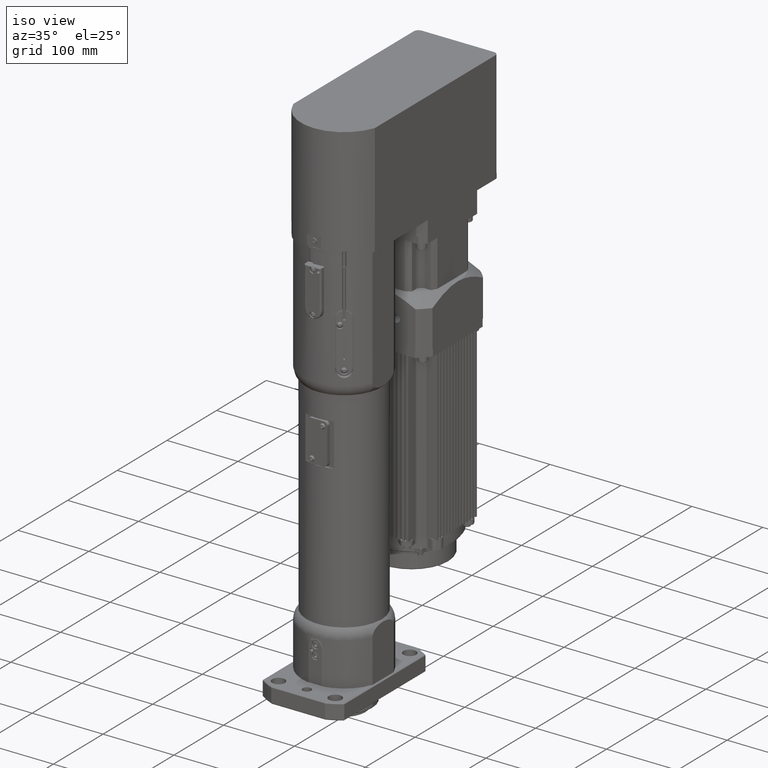
[diagram: clean part render]
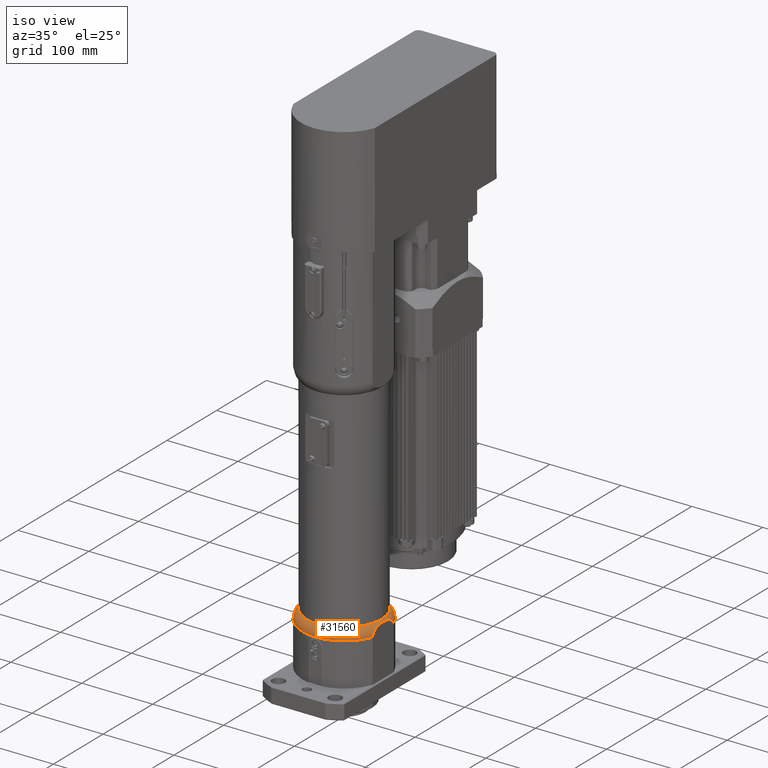
[diagram: same view with one face highlighted and labeled with its STEP entity id]
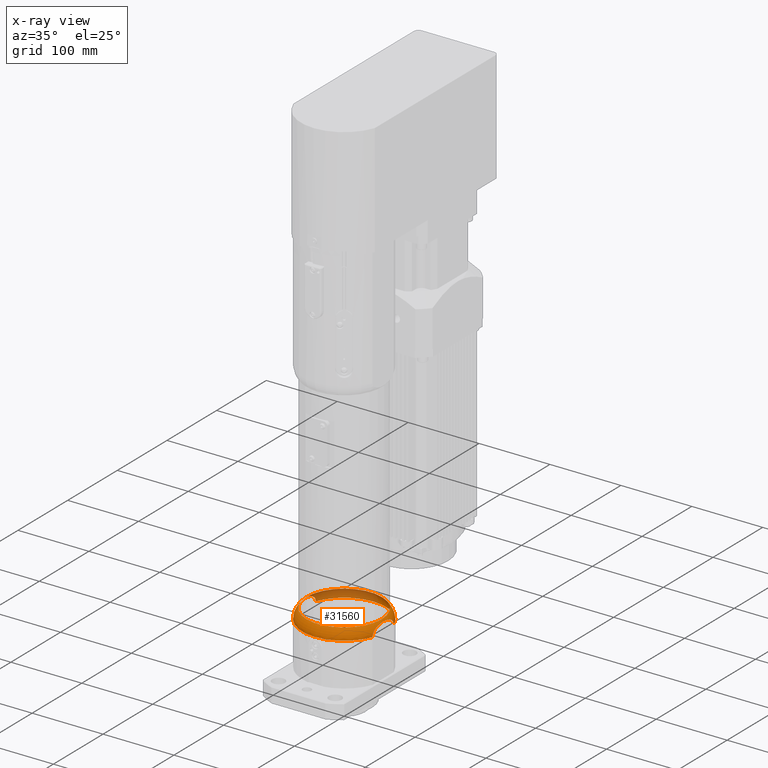
[diagram: x-ray of the same camera — body ghosted, the highlighted face saturated]
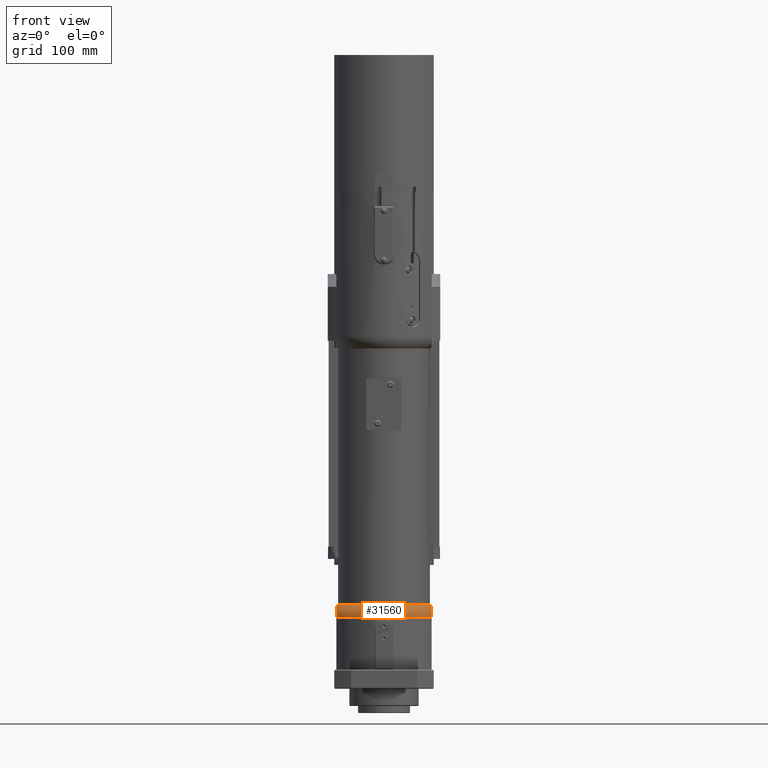
[diagram: same view with one face highlighted and labeled with its STEP entity id]
A machine part, iso view. The second image highlights one B-rep face of the part: STEP entity #31560.
The next image is the same camera in x-ray: the body ghosted, the highlighted face saturated — about 29% of this face is hidden behind the body in this view.
A second angle (front view) of the same face is appended — the face is thin or edge-on in the first view.
In plain terms, the highlighted toroidal blend (fillet) surface has major radius 39 mm and minor (blend) radius 20 mm.
Its self-contained STEP definition (entity closure, byte-faithful):
#243=TOROIDAL_SURFACE('',#34134,39.0000000000003,20.);
#8821=FACE_OUTER_BOUND('',#10650,.T.);
#10650=EDGE_LOOP('',(#24786,#24787,#24788,#24789,#24790,#24791,#24792,#24793,
#24794));
#12631=CIRCLE('',#34135,59.0000000000003);
#12632=CIRCLE('',#34136,20.);
#12633=CIRCLE('',#34137,53.);
#12634=CIRCLE('',#34138,53.);
#12635=CIRCLE('',#34139,59.0000000000003);
#13632=B_SPLINE_CURVE_WITH_KNOTS('',3,(#50104,#50105,#50106,#50107,#50108,
#50109,#50110,#50111,#50112,#50113,#50114,#50115,#50116,#50117,#50118,#50119,
#50120,#50121,#50122,#50123,#50124,#50125,#50126,#50127,#50128,#50129,#50130,
#50131,#50132,#50133,#50134,#50135,#50136,#50137,#50138),.UNSPECIFIED.,
 .F.,.F.,(4,2,2,2,2,2,2,2,3,2,2,2,2,2,2,2,4),(-2.53659667653241,-2.4085389954998,
-2.28048131446718,-2.12513834180732,-1.96979536914745,-1.73820945368033,
-1.50662353821322,-0.75331176910661,0.,0.753311769106609,1.50662353821322,
1.73820945368033,1.96979536914745,2.12513834180732,2.28048131446718,2.4085389954998,
2.53659667653241),.UNSPECIFIED.);
#13633=B_SPLINE_CURVE_WITH_KNOTS('',3,(#50142,#50143,#50144,#50145,#50146,
#50147,#50148,#50149,#50150,#50151,#50152,#50153,#50154,#50155,#50156,#50157,
#50158,#50159),.UNSPECIFIED.,.F.,.F.,(4,2,2,2,2,2,2,2,4),(-2.53659667653189,
-2.40853899549931,-2.28048131446672,-2.12513834180689,-1.96979536914705,
-1.73820945367998,-1.50662353821291,-0.753311769106457,0.),
 .UNSPECIFIED.);
#13634=B_SPLINE_CURVE_WITH_KNOTS('',3,(#50166,#50167,#50168,#50169,#50170,
#50171,#50172,#50173,#50174,#50175,#50176,#50177,#50178,#50179,#50180,#50181,
#50182,#50183),.UNSPECIFIED.,.F.,.F.,(4,2,2,2,2,2,2,2,4),(0.,0.753311769106457,
1.50662353821291,1.73820945367998,1.96979536914705,2.12513834180689,2.28048131446672,
2.40853899549931,2.53659667653189),.UNSPECIFIED.);
#15028=VERTEX_POINT('',#50102);
#15029=VERTEX_POINT('',#50103);
#15030=VERTEX_POINT('',#50139);
#15031=VERTEX_POINT('',#50141);
#15032=VERTEX_POINT('',#50160);
#15033=VERTEX_POINT('',#50162);
#15034=VERTEX_POINT('',#50165);
#18631=EDGE_CURVE('',#15028,#15029,#13632,.T.);
#18632=EDGE_CURVE('',#15029,#15030,#12631,.T.);
#18633=EDGE_CURVE('',#15030,#15031,#13633,.T.);
#18634=EDGE_CURVE('',#15031,#15032,#12632,.T.);
#18635=EDGE_CURVE('',#15032,#15033,#12633,.T.);
#18636=EDGE_CURVE('',#15033,#15032,#12634,.T.);
#18637=EDGE_CURVE('',#15031,#15034,#13634,.T.);
#18638=EDGE_CURVE('',#15034,#15028,#12635,.T.);
#24786=ORIENTED_EDGE('',*,*,#18631,.T.);
#24787=ORIENTED_EDGE('',*,*,#18632,.T.);
#24788=ORIENTED_EDGE('',*,*,#18633,.T.);
#24789=ORIENTED_EDGE('',*,*,#18634,.T.);
#24790=ORIENTED_EDGE('',*,*,#18635,.T.);
#24791=ORIENTED_EDGE('',*,*,#18636,.T.);
#24792=ORIENTED_EDGE('',*,*,#18634,.F.);
#24793=ORIENTED_EDGE('',*,*,#18637,.T.);
#24794=ORIENTED_EDGE('',*,*,#18638,.T.);
#31560=ADVANCED_FACE('',(#8821),#243,.T.);
#34134=AXIS2_PLACEMENT_3D('',#50101,#39809,#39810);
#34135=AXIS2_PLACEMENT_3D('',#50140,#39811,#39812);
#34136=AXIS2_PLACEMENT_3D('',#50161,#39813,#39814);
#34137=AXIS2_PLACEMENT_3D('',#50163,#39815,#39816);
#34138=AXIS2_PLACEMENT_3D('',#50164,#39817,#39818);
#34139=AXIS2_PLACEMENT_3D('',#50184,#39819,#39820);
#39809=DIRECTION('center_axis',(8.18928724299131E-16,-5.62947358965912E-15,
-1.));
#39810=DIRECTION('ref_axis',(-1.,2.12676588861223E-12,-7.22585832976369E-16));
#39811=DIRECTION('center_axis',(-8.18928724299131E-16,5.62947358965912E-15,
1.));
#39812=DIRECTION('ref_axis',(-1.,2.12676588861223E-12,-8.18928724311103E-16));
#39813=DIRECTION('center_axis',(-2.12664342393231E-12,-1.,5.62947358965737E-15));
#39814=DIRECTION('ref_axis',(1.,-2.12664342393231E-12,9.03232291220462E-16));
#39815=DIRECTION('center_axis',(8.18928724299131E-16,-5.62947358965912E-15,
-1.));
#39816=DIRECTION('ref_axis',(1.,-2.05872930986111E-12,8.1892872431072E-16));
#39817=DIRECTION('center_axis',(8.18928724299131E-16,-5.62947358965912E-15,
-1.));
#39818=DIRECTION('ref_axis',(1.,-2.05872930986111E-12,8.1892872431072E-16));
#39819=DIRECTION('center_axis',(-8.18928724299131E-16,5.62947358965912E-15,
1.));
#39820=DIRECTION('ref_axis',(-1.,2.12676588861223E-12,-8.18928724311103E-16));
#50101=CARTESIAN_POINT('Origin',(1.10514485341356E-10,-1.09415524526279E-11,
82.7171431429139));
#50102=CARTESIAN_POINT('',(-54.9999999998439,21.3541565041649,82.7171431429137));
#50103=CARTESIAN_POINT('',(-54.9999999999323,-21.3541565039661,82.7171431429139));
#50104=CARTESIAN_POINT('Ctrl Pts',(-54.9999999998439,21.35415650417,82.7171431429137));
#50105=CARTESIAN_POINT('Ctrl Pts',(-54.9999999998439,21.35415650417,83.1440020796891));
#50106=CARTESIAN_POINT('Ctrl Pts',(-54.999999999844,21.3136999111205,83.6104254402739));
#50107=CARTESIAN_POINT('Ctrl Pts',(-54.9999999998443,21.1414096503454,84.5264885350108));
#50108=CARTESIAN_POINT('Ctrl Pts',(-54.9999999998446,21.0098575219722,84.9761811978009));
#50109=CARTESIAN_POINT('Ctrl Pts',(-54.9999999998453,20.6757006624195,85.8597752341885));
#50110=CARTESIAN_POINT('Ctrl Pts',(-54.9999999998458,20.4261579010344,86.36950767458));
#50111=CARTESIAN_POINT('Ctrl Pts',(-54.999999999847,19.833803119195,87.3331620817128));
#50112=CARTESIAN_POINT('Ctrl Pts',(-54.9999999998477,19.4917548976198,87.7875533443014));
#50113=CARTESIAN_POINT('Ctrl Pts',(-54.9999999998495,18.6489328375884,88.7638419641286));
#50114=CARTESIAN_POINT('Ctrl Pts',(-54.9999999998508,18.0350696033766,89.3453058725042));
#50115=CARTESIAN_POINT('Ctrl Pts',(-54.9999999998535,16.7094116709838,90.388402981088));
#50116=CARTESIAN_POINT('Ctrl Pts',(-54.9999999998549,15.9986958767723,90.8514066165721));
#50117=CARTESIAN_POINT('Ctrl Pts',(-54.9999999998609,13.1470194859994,92.4780535006268));
#50118=CARTESIAN_POINT('Ctrl Pts',(-54.9999999998662,10.5733002698936,93.3621586314787));
#50119=CARTESIAN_POINT('Ctrl Pts',(-54.9999999998772,5.25537698821029,94.4820209336154));
#50120=CARTESIAN_POINT('Ctrl Pts',(-54.9999999998829,2.51103923045832,94.7171431429161));
#50121=CARTESIAN_POINT('Ctrl Pts',(-54.9999999998881,1.02950889816628E-10,
94.7171431429161));
#50122=CARTESIAN_POINT('Ctrl Pts',(-54.9999999998933,-2.51103923025241,
94.7171431429161));
#50123=CARTESIAN_POINT('Ctrl Pts',(-54.999999999899,-5.25537698800438,94.4820209336155));
#50124=CARTESIAN_POINT('Ctrl Pts',(-54.99999999991,-10.5733002696877,93.3621586314788));
#50125=CARTESIAN_POINT('Ctrl Pts',(-54.9999999999153,-13.1470194857935,
92.4780535006269));
#50126=CARTESIAN_POINT('Ctrl Pts',(-54.9999999999212,-15.9986958765664,
90.8514066165722));
#50127=CARTESIAN_POINT('Ctrl Pts',(-54.9999999999226,-16.709411670778,90.3884029810882));
#50128=CARTESIAN_POINT('Ctrl Pts',(-54.9999999999254,-18.0350696031707,
89.3453058725044));
#50129=CARTESIAN_POINT('Ctrl Pts',(-54.9999999999267,-18.6489328373825,
88.7638419641289));
#50130=CARTESIAN_POINT('Ctrl Pts',(-54.9999999999284,-19.4917548974139,
87.7875533443016));
#50131=CARTESIAN_POINT('Ctrl Pts',(-54.9999999999291,-19.8338031189892,
87.333162081713));
#50132=CARTESIAN_POINT('Ctrl Pts',(-54.9999999999303,-20.4261579008286,
86.3695076745802));
#50133=CARTESIAN_POINT('Ctrl Pts',(-54.9999999999308,-20.6757006622137,
85.8597752341888));
#50134=CARTESIAN_POINT('Ctrl Pts',(-54.9999999999315,-21.0098575217664,
84.9761811978012));
#50135=CARTESIAN_POINT('Ctrl Pts',(-54.9999999999318,-21.1414096501397,
84.526488535011));
#50136=CARTESIAN_POINT('Ctrl Pts',(-54.9999999999322,-21.3136999109147,
83.6104254402741));
#50137=CARTESIAN_POINT('Ctrl Pts',(-54.9999999999322,-21.3541565039643,
83.1440020796893));
#50138=CARTESIAN_POINT('Ctrl Pts',(-54.9999999999322,-21.3541565039643,
82.7171431429139));
#50139=CARTESIAN_POINT('',(55.0000000000669,-21.3541565041903,82.717143142914));
#50140=CARTESIAN_POINT('Origin',(1.10514485341356E-10,-1.09415524526279E-11,
82.7171431429139));
#50141=CARTESIAN_POINT('',(55.0000000001108,-1.25960066381993E-10,94.7171431429139));
#50142=CARTESIAN_POINT('Ctrl Pts',(55.0000000000669,-21.3541565041869,82.717143142914));
#50143=CARTESIAN_POINT('Ctrl Pts',(55.0000000000669,-21.3541565041869,83.1440020796893));
#50144=CARTESIAN_POINT('Ctrl Pts',(55.0000000000669,-21.3136999111373,83.610425440274));
#50145=CARTESIAN_POINT('Ctrl Pts',(55.0000000000673,-21.1414096503623,84.5264885350107));
#50146=CARTESIAN_POINT('Ctrl Pts',(55.0000000000676,-21.0098575219891,84.9761811978008));
#50147=CARTESIAN_POINT('Ctrl Pts',(55.0000000000683,-20.6757006624365,85.8597752341882));
#50148=CARTESIAN_POINT('Ctrl Pts',(55.0000000000688,-20.4261579010514,86.3695076745795));
#50149=CARTESIAN_POINT('Ctrl Pts',(55.00000000007,-19.8338031192122,87.3331620817121));
#50150=CARTESIAN_POINT('Ctrl Pts',(55.0000000000707,-19.491754897637,87.7875533443006));
#50151=CARTESIAN_POINT('Ctrl Pts',(55.0000000000724,-18.6489328376057,88.7638419641277));
#50152=CARTESIAN_POINT('Ctrl Pts',(55.0000000000737,-18.0350696033941,89.3453058725031));
#50153=CARTESIAN_POINT('Ctrl Pts',(55.0000000000764,-16.7094116710016,90.3884029810867));
#50154=CARTESIAN_POINT('Ctrl Pts',(55.0000000000779,-15.9986958767902,90.8514066165707));
#50155=CARTESIAN_POINT('Ctrl Pts',(55.0000000000838,-13.1470194860179,92.4780535006251));
#50156=CARTESIAN_POINT('Ctrl Pts',(55.000000000089,-10.5733002699126,93.3621586314768));
#50157=CARTESIAN_POINT('Ctrl Pts',(55.0000000001,-5.25537698823035,94.4820209336133));
#50158=CARTESIAN_POINT('Ctrl Pts',(55.0000000001056,-2.51103923047894,94.7171431429139));
#50159=CARTESIAN_POINT('Ctrl Pts',(55.0000000001108,-1.24080745678157E-10,
94.7171431429139));
#50160=CARTESIAN_POINT('',(53.0000000001105,-1.23573248955579E-10,96.9999999999999));
#50161=CARTESIAN_POINT('Origin',(39.0000000001108,-9.38806459859888E-11,
82.7171431429139));
#50162=CARTESIAN_POINT('',(-52.9999999998895,9.82450153074372E-11,96.9999999999998));
#50163=CARTESIAN_POINT('Origin',(1.10502788699611E-10,-1.08611474871661E-11,
96.9999999999999));
#50164=CARTESIAN_POINT('Origin',(1.10502788699611E-10,-1.08611474871661E-11,
96.9999999999999));
#50165=CARTESIAN_POINT('',(55.0000000001548,21.354156503935,82.7171431429138));
#50166=CARTESIAN_POINT('Ctrl Pts',(55.0000000001108,-1.24080745678157E-10,
94.7171431429139));
#50167=CARTESIAN_POINT('Ctrl Pts',(55.000000000116,2.51103923023078,94.7171431429139));
#50168=CARTESIAN_POINT('Ctrl Pts',(55.0000000001216,5.25537698798219,94.4820209336133));
#50169=CARTESIAN_POINT('Ctrl Pts',(55.0000000001326,10.5733002696644,93.3621586314767));
#50170=CARTESIAN_POINT('Ctrl Pts',(55.0000000001379,13.1470194857697,92.4780535006249));
#50171=CARTESIAN_POINT('Ctrl Pts',(55.0000000001437,15.998695876542,90.8514066165705));
#50172=CARTESIAN_POINT('Ctrl Pts',(55.0000000001452,16.7094116707534,90.3884029810866));
#50173=CARTESIAN_POINT('Ctrl Pts',(55.0000000001479,18.0350696031459,89.3453058725029));
#50174=CARTESIAN_POINT('Ctrl Pts',(55.0000000001492,18.6489328373575,88.7638419641275));
#50175=CARTESIAN_POINT('Ctrl Pts',(55.0000000001509,19.4917548973887,87.7875533443004));
#50176=CARTESIAN_POINT('Ctrl Pts',(55.0000000001516,19.8338031189639,87.3331620817119));
#50177=CARTESIAN_POINT('Ctrl Pts',(55.0000000001529,20.4261579008031,86.3695076745793));
#50178=CARTESIAN_POINT('Ctrl Pts',(55.0000000001534,20.6757006621882,85.8597752341879));
#50179=CARTESIAN_POINT('Ctrl Pts',(55.0000000001541,21.0098575217409,84.9761811978005));
#50180=CARTESIAN_POINT('Ctrl Pts',(55.0000000001543,21.1414096501141,84.5264885350105));
#50181=CARTESIAN_POINT('Ctrl Pts',(55.0000000001547,21.313699910889,83.6104254402738));
#50182=CARTESIAN_POINT('Ctrl Pts',(55.0000000001548,21.3541565039386,83.1440020796891));
#50183=CARTESIAN_POINT('Ctrl Pts',(55.0000000001548,21.3541565039386,82.7171431429138));
#50184=CARTESIAN_POINT('Origin',(1.10514485341356E-10,-1.09415524526279E-11,
82.7171431429139));